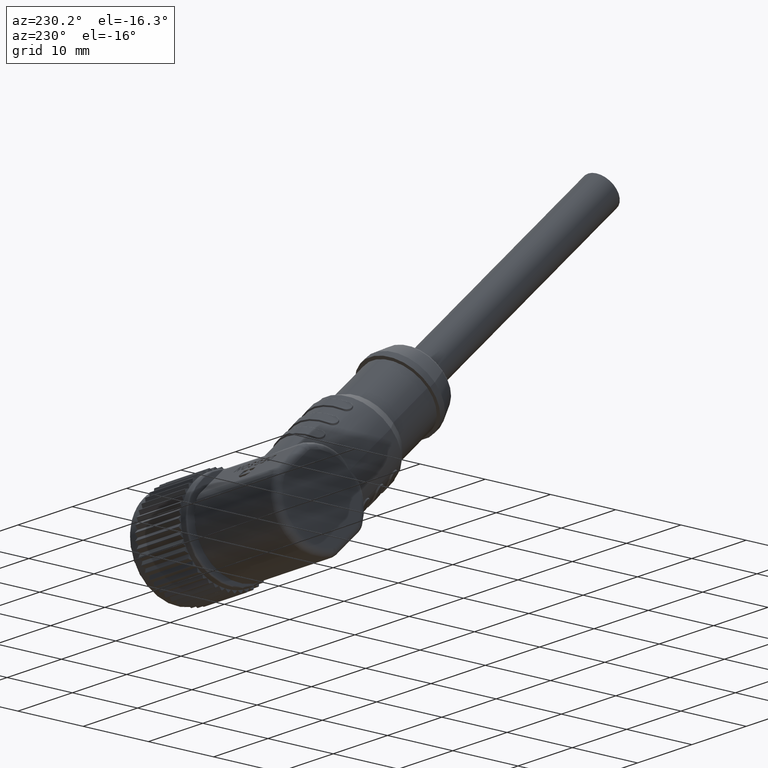
[diagram: clean part render]
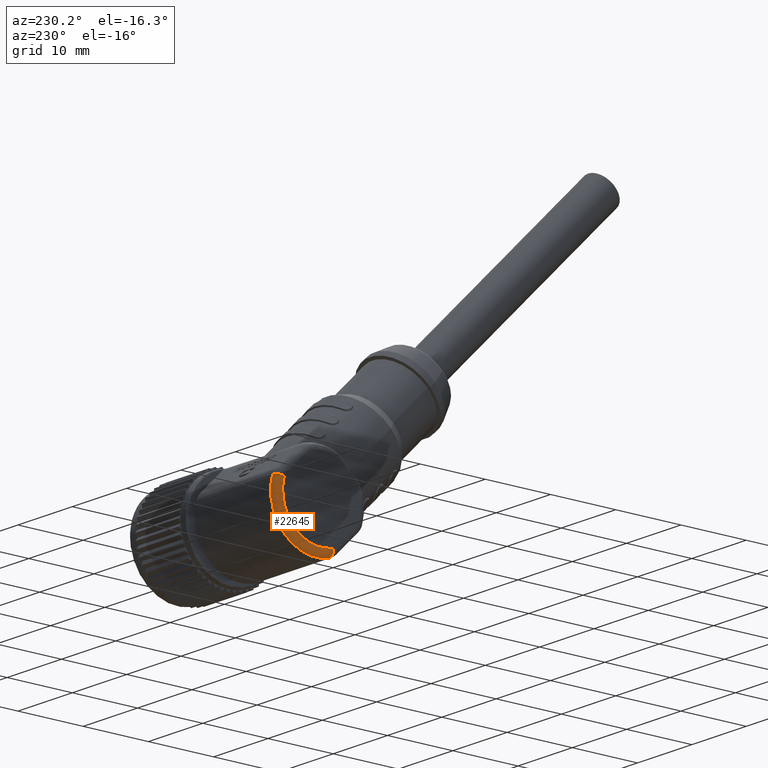
[diagram: same view with one face highlighted and labeled with its STEP entity id]
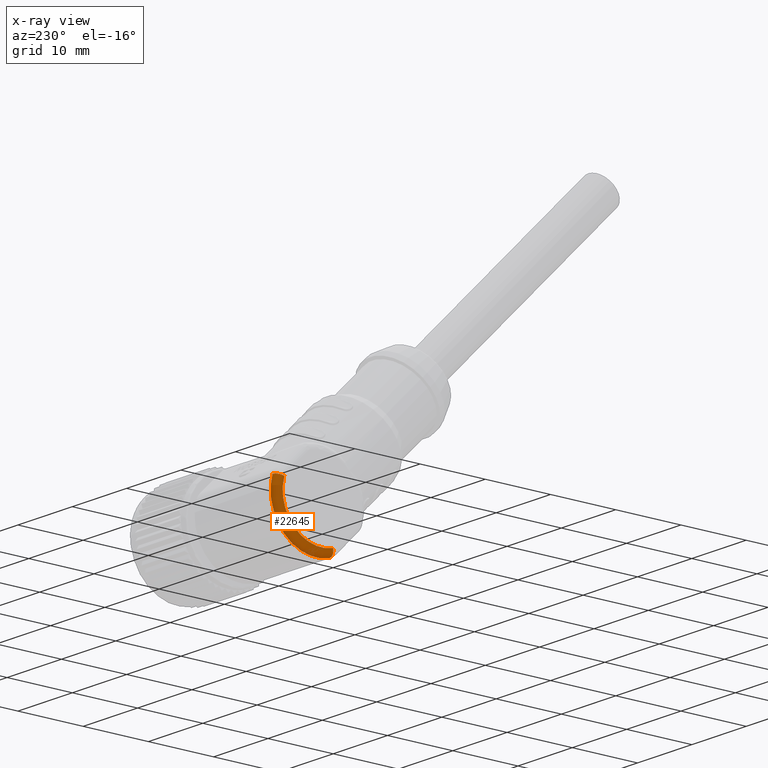
[diagram: x-ray of the same camera — body ghosted, the highlighted face saturated]
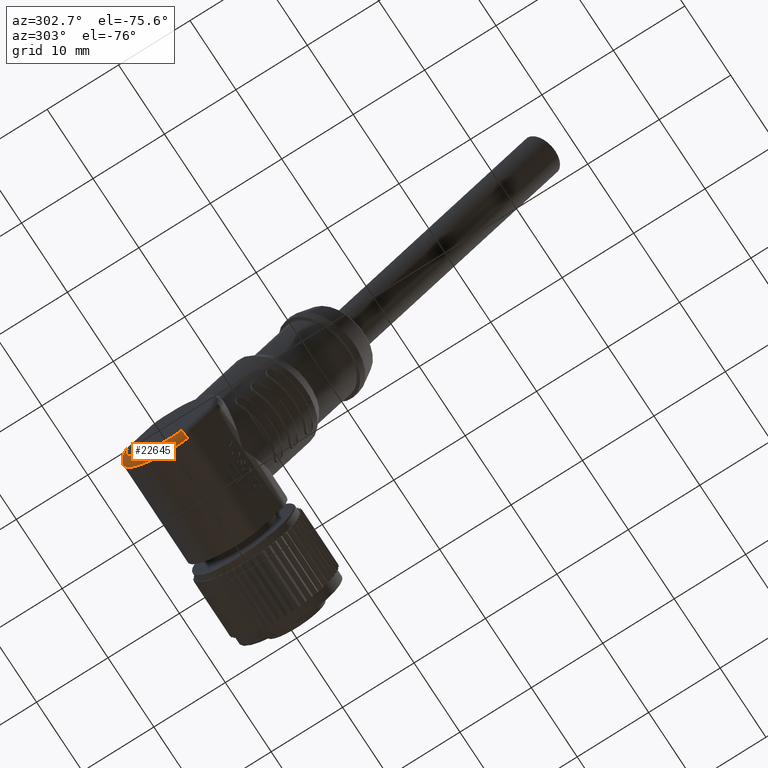
[diagram: same view with one face highlighted and labeled with its STEP entity id]
A machine part, auxiliary view. The second image highlights one B-rep face of the part: STEP entity #22645.
The next image is the same camera in x-ray: the body ghosted, the highlighted face saturated — about 0% of this face is hidden behind the body in this view.
A second angle (auxiliary view) of the same face is appended — the face is thin or edge-on in the first view.
In plain terms, the highlighted toroidal blend (fillet) surface has major radius 6 mm and minor (blend) radius 1 mm.
Its self-contained STEP definition (entity closure, byte-faithful):
#3192=CARTESIAN_POINT('',(-2.69E1,-1.718381129820E0,-5.748666479521E0));
#3193=DIRECTION('',(3.068146621750E-12,9.581110799196E-1,-2.863968549674E-1));
#3194=DIRECTION('',(-3.975486606612E-12,-2.863968549674E-1,-9.581110799196E-1));
#3195=AXIS2_PLACEMENT_3D('',#3192,#3193,#3194);
#3207=CARTESIAN_POINT('',(-2.69E1,0.E0,0.E0));
#3208=DIRECTION('',(1.E0,0.E0,0.E0));
#3209=DIRECTION('',(0.E0,-2.863968549693E-1,-9.581110799191E-1));
#3210=AXIS2_PLACEMENT_3D('',#3207,#3208,#3209);
#3212=CARTESIAN_POINT('',(-2.69E1,0.E0,0.E0));
#3213=DIRECTION('',(1.E0,0.E0,0.E0));
#3214=DIRECTION('',(0.E0,7.052737104962E-1,-7.089351121809E-1));
#3215=AXIS2_PLACEMENT_3D('',#3212,#3213,#3214);
#3968=CARTESIAN_POINT('',(-2.79E1,0.E0,0.E0));
#3969=DIRECTION('',(1.E0,0.E0,0.E0));
#3970=DIRECTION('',(0.E0,-2.863968549687E-1,-9.581110799192E-1));
#3971=AXIS2_PLACEMENT_3D('',#3968,#3969,#3970);
#3973=CARTESIAN_POINT('',(-2.79E1,0.E0,0.E0));
#3974=DIRECTION('',(1.E0,0.E0,0.E0));
#3975=DIRECTION('',(0.E0,7.052737104962E-1,-7.089351121809E-1));
#3976=AXIS2_PLACEMENT_3D('',#3973,#3974,#3975);
#4013=CARTESIAN_POINT('',(-2.69E1,5.748666479514E0,1.718381129815E0));
#4014=DIRECTION('',(0.E0,2.863968549692E-1,-9.581110799191E-1));
#4015=DIRECTION('',(-1.E0,0.E0,0.E0));
#4016=AXIS2_PLACEMENT_3D('',#4013,#4014,#4015);
#13411=CARTESIAN_POINT('',(-2.69E1,6.706777559433E0,2.004777984784E0));
#13412=VERTEX_POINT('',#13411);
#13429=CARTESIAN_POINT('',(-2.69E1,-2.004777984784E0,-6.706777559433E0));
#13430=VERTEX_POINT('',#13429);
#13907=CARTESIAN_POINT('',(-2.789999999999E1,-1.718381129815E0,
-5.748666479515E0));
#13908=VERTEX_POINT('',#13907);
#13909=CARTESIAN_POINT('',(-2.69E1,4.936915973473E0,-4.962545785266E0));
#13910=VERTEX_POINT('',#13909);
#13911=CARTESIAN_POINT('',(-2.79E1,5.748666479514E0,1.718381129815E0));
#13912=VERTEX_POINT('',#13911);
#13913=CARTESIAN_POINT('',(-2.79E1,4.231642262977E0,-4.253610673085E0));
#13914=VERTEX_POINT('',#13913);
#22627=CARTESIAN_POINT('',(-2.69E1,0.E0,0.E0));
#22628=DIRECTION('',(1.E0,0.E0,0.E0));
#22629=DIRECTION('',(0.E0,-7.052737104962E-1,7.089351121809E-1));
#22630=AXIS2_PLACEMENT_3D('',#22627,#22628,#22629);
#22631=TOROIDAL_SURFACE('',#22630,6.E0,1.E0);
#22632=ORIENTED_EDGE('',*,*,#22618,.F.);
#22634=ORIENTED_EDGE('',*,*,#22633,.T.);
#22636=ORIENTED_EDGE('',*,*,#22635,.T.);
#22638=ORIENTED_EDGE('',*,*,#22637,.F.);
#22640=ORIENTED_EDGE('',*,*,#22639,.F.);
#22642=ORIENTED_EDGE('',*,*,#22641,.F.);
#22643=EDGE_LOOP('',(#22632,#22634,#22636,#22638,#22640,#22642));
#22644=FACE_OUTER_BOUND('',#22643,.F.);
#22645=ADVANCED_FACE('',(#22644),#22631,.T.);
#3196=CIRCLE('',#3195,9.999999999914E-1);
#3211=CIRCLE('',#3210,7.E0);
#3216=CIRCLE('',#3215,7.E0);
#3972=CIRCLE('',#3971,6.E0);
#3977=CIRCLE('',#3976,6.E0);
#4017=CIRCLE('',#4016,1.E0);
#22618=EDGE_CURVE('',#13430,#13908,#3196,.T.);
#22633=EDGE_CURVE('',#13430,#13910,#3211,.T.);
#22635=EDGE_CURVE('',#13910,#13412,#3216,.T.);
#22637=EDGE_CURVE('',#13912,#13412,#4017,.T.);
#22639=EDGE_CURVE('',#13914,#13912,#3977,.T.);
#22641=EDGE_CURVE('',#13908,#13914,#3972,.T.);